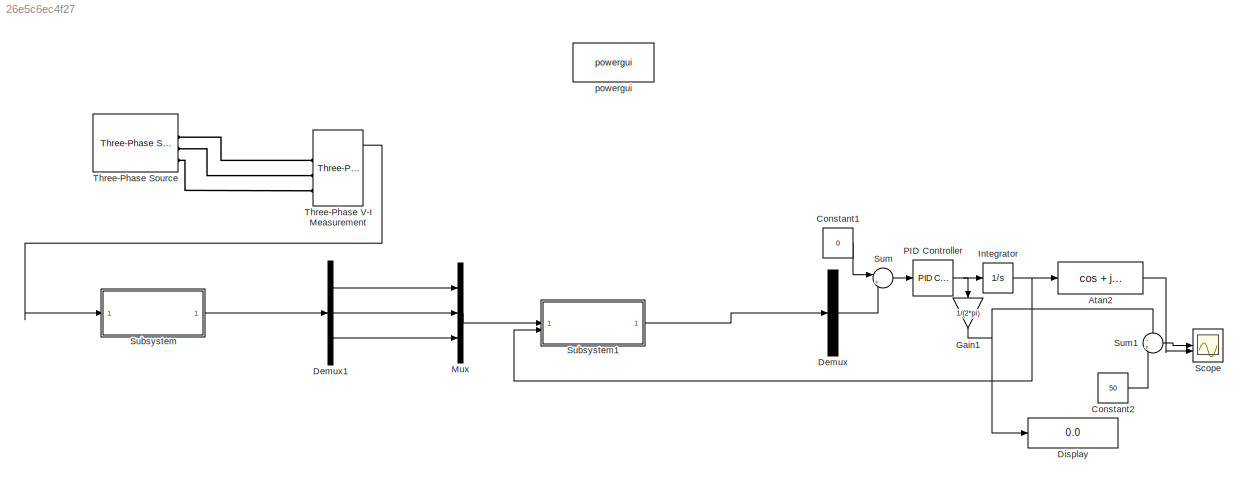
MODEL slx_26e5c6ec4f27
KIND model
CONFIG AbsTol = auto
CONFIG EnableMultiTasking = off
CONFIG FixedStep = auto
CONFIG MaxStep = auto
CONFIG MinStep = auto
CONFIG RelTol = 1e-3
CONFIG SampleTimeConstraint = Unconstrained
CONFIG SolverName = VariableStepAuto
CONFIG StartTime = 0.0
CONFIG StopTime = 10
BLOCK [Trigonometry] Atan2
  Operator = cos + jsin
BLOCK [Constant] Constant1
  Value = 0
BLOCK [Constant] Constant2
  Value = 50
BLOCK [Demux] Demux
  Outputs = 3
BLOCK [Demux] Demux1
  Outputs = 3
BLOCK [Display] Display
  Decimation = 1
BLOCK [Gain] Gain1
  Gain = 1/(2*pi)
  NameLocation = left
BLOCK [Integrator] Integrator
BLOCK [Mux] Mux
  DisplayOption = bar
  Inputs = 3
BLOCK [Reference] PID Controller  REF=slpidlib/PID Controller
  LibrarySourceBlock = simulink/Continuous/PID Controller
  SourceBlock = slpidlib/PID Controller
  SourceType = PID 1dof
BLOCK [Scope] Scope
  Floating = off
  NumInputPorts = 2
  ScopeSpecificationString = Simulink.scopes.TimeScopeBlockCfg('CurrentConfiguration', extmgr.ConfigurationSet(extmgr.Configuration('Core','General UI',true),extmgr.Configuration('Core','Source UI',true),extmgr.Configuration('Sources','WiredSimulink',true),extmgr.Configuration('Visuals','Time Domain',true,'SerializedDisplays',{struct('MinYLimReal','-558.85167','MaxYLimReal','68.39927','YLabelReal','','MinYLimMag',' 0.00000','...<+1963ch>
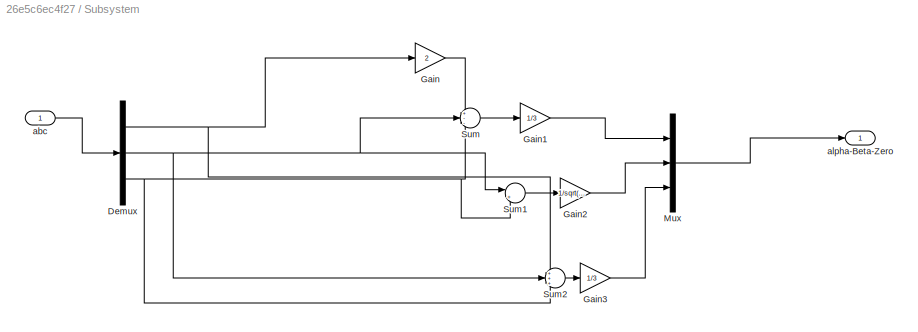
BLOCK [SubSystem] Subsystem
BLOCK [Demux] Subsystem/Demux
  Outputs = 3
BLOCK [Gain] Subsystem/Gain
  Gain = 2
BLOCK [Gain] Subsystem/Gain1
  Gain = 1/3
BLOCK [Gain] Subsystem/Gain2
  Gain = 1/sqrt(3)
BLOCK [Gain] Subsystem/Gain3
  Gain = 1/3
BLOCK [Mux] Subsystem/Mux
  DisplayOption = bar
  Inputs = 3
BLOCK [Sum] Subsystem/Sum
  Inputs = +--
BLOCK [Sum] Subsystem/Sum1
  Inputs = |+-
BLOCK [Sum] Subsystem/Sum2
  Inputs = +++
BLOCK [Inport] Subsystem/abc
BLOCK [Outport] Subsystem/alpha-Beta-Zero
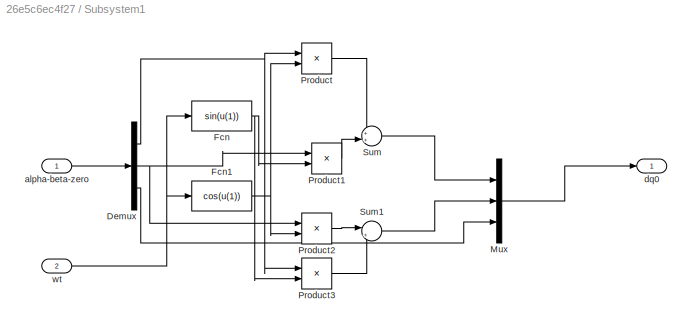
BLOCK [SubSystem] Subsystem1
BLOCK [Demux] Subsystem1/Demux
  Outputs = 3
BLOCK [Fcn] Subsystem1/Fcn
  Expr = sin(u(1))
BLOCK [Fcn] Subsystem1/Fcn1
  Expr = cos(u(1))
BLOCK [Mux] Subsystem1/Mux
  DisplayOption = bar
  Inputs = 3
BLOCK [Product] Subsystem1/Product
BLOCK [Product] Subsystem1/Product1
BLOCK [Product] Subsystem1/Product2
BLOCK [Product] Subsystem1/Product3
BLOCK [Sum] Subsystem1/Sum
BLOCK [Sum] Subsystem1/Sum1
  Inputs = |+-
BLOCK [Inport] Subsystem1/alpha-beta-zero
BLOCK [Outport] Subsystem1/dq0
BLOCK [Inport] Subsystem1/wt
  Port = 2
BLOCK [Sum] Sum
  Inputs = |+-
BLOCK [Sum] Sum1
  Inputs = -+
BLOCK [Reference] Three-Phase Source  REF=spsThreePhaseSourceLib/Three-Phase Source
  LibrarySourceBlock = sps_lib/Sources/Three-Phase Source
  SourceBlock = spsThreePhaseSourceLib/Three-Phase Source
  SourceType = Three-Phase Source
BLOCK [Reference] Three-Phase V-I Measurement  REF=spsThreePhaseVIMeasurementLib/Three-Phase
V-I Measurement
  LibrarySourceBlock = sps_lib/Sensors and Measurements/Three-Phase\nV-I Measurement
  SourceBlock = spsThreePhaseVIMeasurementLib/Three-Phase\nV-I Measurement
  SourceType = Three-Phase VI Measurement
BLOCK [Reference] powergui  REF=sps_lib/powergui
  Priority = 1
  SourceBlock = sps_lib/powergui
  SourceType = PSB option menu block
LINE Atan2:1 -> Scope:2
LINE Constant1:1 -> Sum:1
LINE Constant2:1 -> Sum1:2
LINE Demux1:1 -> Mux:1
LINE Demux1:2 -> Mux:2
LINE Demux1:3 -> Mux:3
LINE Demux:2 -> Sum:2
NET Gain1:1 -> Display:1, Sum1:1
NET Integrator:1 -> Atan2:1, Subsystem1:2
LINE Mux:1 -> Subsystem1:1
NET PID Controller:1 -> Gain1:1, Integrator:1
NET Subsystem/Demux:1 -> Subsystem/Gain:1, Subsystem/Sum2:1
NET Subsystem/Demux:2 -> Subsystem/Sum1:1, Subsystem/Sum2:2, Subsystem/Sum:2
NET Subsystem/Demux:3 -> Subsystem/Sum1:2, Subsystem/Sum2:3, Subsystem/Sum:3
LINE Subsystem/Gain1:1 -> Subsystem/Mux:1
LINE Subsystem/Gain2:1 -> Subsystem/Mux:2
LINE Subsystem/Gain3:1 -> Subsystem/Mux:3
LINE Subsystem/Gain:1 -> Subsystem/Sum:1
LINE Subsystem/Mux:1 -> Subsystem/alpha-Beta-Zero:1
LINE Subsystem/Sum1:1 -> Subsystem/Gain2:1
LINE Subsystem/Sum2:1 -> Subsystem/Gain3:1
LINE Subsystem/Sum:1 -> Subsystem/Gain1:1
LINE Subsystem/abc:1 -> Subsystem/Demux:1
NET Subsystem1/Demux:1 -> Subsystem1/Product3:1, Subsystem1/Product:1
NET Subsystem1/Demux:2 -> Subsystem1/Product1:1, Subsystem1/Product2:1
LINE Subsystem1/Demux:3 -> Subsystem1/Mux:3
NET Subsystem1/Fcn1:1 -> Subsystem1/Product2:2, Subsystem1/Product:2
NET Subsystem1/Fcn:1 -> Subsystem1/Product1:2, Subsystem1/Product3:2
LINE Subsystem1/Mux:1 -> Subsystem1/dq0:1
LINE Subsystem1/Product1:1 -> Subsystem1/Sum:2
LINE Subsystem1/Product2:1 -> Subsystem1/Sum1:1
LINE Subsystem1/Product3:1 -> Subsystem1/Sum1:2
LINE Subsystem1/Product:1 -> Subsystem1/Sum:1
LINE Subsystem1/Sum1:1 -> Subsystem1/Mux:2
LINE Subsystem1/Sum:1 -> Subsystem1/Mux:1
LINE Subsystem1/alpha-beta-zero:1 -> Subsystem1/Demux:1
NET Subsystem1/wt:1 -> Subsystem1/Fcn1:1, Subsystem1/Fcn:1
LINE Subsystem1:1 -> Demux:1
LINE Subsystem:1 -> Demux1:1
LINE Sum1:1 -> Scope:1
LINE Sum:1 -> PID Controller:1
LINE Three-Phase V-I Measurement:1 -> Subsystem:1
PLINE Three-Phase Source:RConn1 -- Three-Phase V-I Measurement:LConn1
PLINE Three-Phase Source:RConn2 -- Three-Phase V-I Measurement:LConn2
PLINE Three-Phase Source:RConn3 -- Three-Phase V-I Measurement:LConn3
note: NET lines group one-source signal fan-out (src -> all destinations, sorted); 1:1 wires keep LINE
